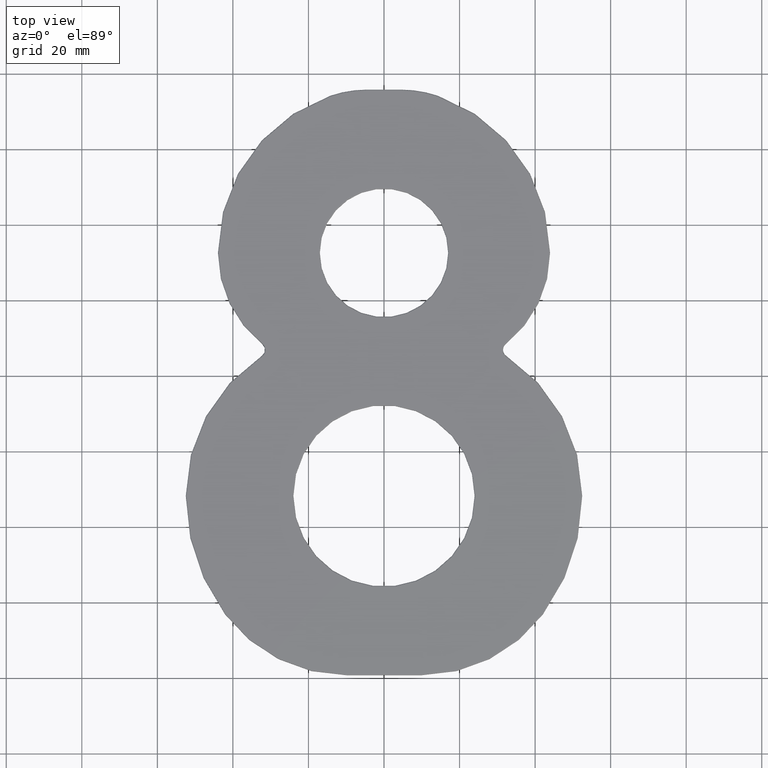
[diagram: clean part render]
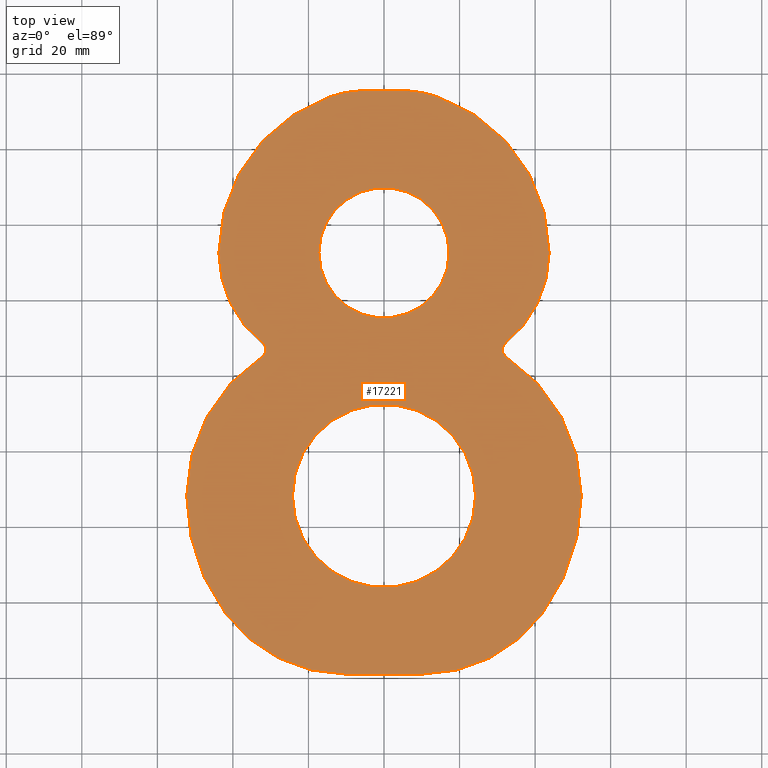
[diagram: same view with one face highlighted and labeled with its STEP entity id]
A machine part, top view. The second image highlights one B-rep face of the part: STEP entity #17221.
In plain terms, the highlighted planar face has unit normal (0, 0, 1).
Its self-contained STEP definition (entity closure, byte-faithful):
#182 = AXIS2_PLACEMENT_3D ( 'NONE', #4457, #7644, #20693 ) ;
#204 = DIRECTION ( 'NONE',  ( 1.000000000000000000, 0.000000000000000000, 0.000000000000000000 ) ) ;
#238 = CARTESIAN_POINT ( 'NONE',  ( -9.999999999999991118, 0.2499999999999839573, 2.000000000000000000 ) ) ;
#293 = CIRCLE ( 'NONE', #6199, 43.93447420343915866 ) ;
#358 = CARTESIAN_POINT ( 'NONE',  ( 32.27147091182821015, 84.25240921432731511, 2.000000000000000000 ) ) ;
#373 = VECTOR ( 'NONE', #13080, 1000.000000000000000 ) ;
#522 = CARTESIAN_POINT ( 'NONE',  ( -4.525184639115520824, 154.7499999999999716, 2.000000000000000000 ) ) ;
#526 = CARTESIAN_POINT ( 'NONE',  ( -17.25000000000000000, 111.7999999999999972, 2.000000000000000000 ) ) ;
#648 = CIRCLE ( 'NONE', #13644, 24.25000000000000000 ) ;
#1407 = CARTESIAN_POINT ( 'NONE',  ( -43.70411394600482424, 111.7999999999999972, 2.000000000000000000 ) ) ;
#1480 = DIRECTION ( 'NONE',  ( 1.000000000000000000, 0.000000000000000000, 0.000000000000000000 ) ) ;
#1860 = AXIS2_PLACEMENT_3D ( 'NONE', #22482, #19914, #23021 ) ;
#1879 = CARTESIAN_POINT ( 'NONE',  ( 41.88377982995511672, 16.26211711725438036, 2.000000000000000000 ) ) ;
#1933 = DIRECTION ( 'NONE',  ( -0.000000000000000000, -0.000000000000000000, -1.000000000000000000 ) ) ;
#1934 = CIRCLE ( 'NONE', #22835, 30.41686182021247120 ) ;
#2163 = AXIS2_PLACEMENT_3D ( 'NONE', #20025, #17333, #13805 ) ;
#2239 = ORIENTED_EDGE ( 'NONE', *, *, #5732, .T. ) ;
#2480 = DIRECTION ( 'NONE',  ( 1.000000000000000000, 0.000000000000000000, 0.000000000000000000 ) ) ;
#2918 = CARTESIAN_POINT ( 'NONE',  ( 52.21715421195277429, 47.44512821545821168, 2.000000000000000000 ) ) ;
#4292 = CARTESIAN_POINT ( 'NONE',  ( 8.282680008513624514, 47.44512821545820458, 2.000000000000000000 ) ) ;
#4457 = CARTESIAN_POINT ( 'NONE',  ( 33.50000000000000000, 86.13740690120012289, 2.000000000000000000 ) ) ;
#4598 = ORIENTED_EDGE ( 'NONE', *, *, #15261, .T. ) ;
#5226 = DIRECTION ( 'NONE',  ( 0.000000000000000000, 0.000000000000000000, 1.000000000000000000 ) ) ;
#5390 = DIRECTION ( 'NONE',  ( 0.000000000000000000, 0.000000000000000000, 1.000000000000000000 ) ) ;
#5412 = CIRCLE ( 'NONE', #10775, 52.21715421195277429 ) ;
#5732 = EDGE_CURVE ( 'NONE', #38239, #8104, #293, .T. ) ;
#5837 = VERTEX_POINT ( 'NONE', #29121 ) ;
#6199 = AXIS2_PLACEMENT_3D ( 'NONE', #25318, #15766, #34433 ) ;
#6213 = LINE ( 'NONE', #522, #373 ) ;
#6305 = CARTESIAN_POINT ( 'NONE',  ( 43.70411394600483845, 111.7999999999999972, 2.000000000000000000 ) ) ;
#6318 = CARTESIAN_POINT ( 'NONE',  ( 32.10780374413475613, 87.90497290708358946, 2.000000000000000000 ) ) ;
#6408 = VERTEX_POINT ( 'NONE', #526 ) ;
#6658 = DIRECTION ( 'NONE',  ( 1.000000000000000000, 0.000000000000000000, 0.000000000000000000 ) ) ;
#6874 = EDGE_CURVE ( 'NONE', #14497, #17317, #22132, .T. ) ;
#6965 = EDGE_LOOP ( 'NONE', ( #13730, #4598 ) ) ;
#7644 = DIRECTION ( 'NONE',  ( -0.000000000000000000, -0.000000000000000000, -1.000000000000000000 ) ) ;
#7996 = CARTESIAN_POINT ( 'NONE',  ( 10.00000000000000000, 0.2499999999999998890, 2.000000000000000000 ) ) ;
#8035 = ORIENTED_EDGE ( 'NONE', *, *, #31246, .T. ) ;
#8104 = VERTEX_POINT ( 'NONE', #27449 ) ;
#8802 = ORIENTED_EDGE ( 'NONE', *, *, #10666, .T. ) ;
#8824 = VERTEX_POINT ( 'NONE', #6305 ) ;
#8845 = CARTESIAN_POINT ( 'NONE',  ( -41.88377982995516646, 16.26211711725441944, 2.000000000000000000 ) ) ;
#8904 = EDGE_CURVE ( 'NONE', #8824, #30315, #33178, .T. ) ;
#9042 = EDGE_CURVE ( 'NONE', #5837, #37097, #648, .T. ) ;
#9080 = ORIENTED_EDGE ( 'NONE', *, *, #15685, .T. ) ;
#9342 = DIRECTION ( 'NONE',  ( 0.000000000000000000, 0.000000000000000000, 1.000000000000000000 ) ) ;
#9877 = EDGE_CURVE ( 'NONE', #17317, #21518, #12802, .T. ) ;
#10010 = EDGE_CURVE ( 'NONE', #21518, #36512, #5412, .T. ) ;
#10523 = EDGE_CURVE ( 'NONE', #28993, #30026, #14711, .T. ) ;
#10666 = EDGE_CURVE ( 'NONE', #36093, #33469, #30164, .T. ) ;
#10775 = AXIS2_PLACEMENT_3D ( 'NONE', #31926, #28933, #13125 ) ;
#10887 = CIRCLE ( 'NONE', #15355, 29.74999999999999289 ) ;
#10902 = CARTESIAN_POINT ( 'NONE',  ( -32.10780374413475613, 87.90497290708358946, 2.000000000000000000 ) ) ;
#11315 = AXIS2_PLACEMENT_3D ( 'NONE', #18543, #33691, #27838 ) ;
#11503 = CARTESIAN_POINT ( 'NONE',  ( -3.116700961018092268E-28, 47.44512821545820458, 2.000000000000000000 ) ) ;
#11683 = ORIENTED_EDGE ( 'NONE', *, *, #39736, .T. ) ;
#11979 = CARTESIAN_POINT ( 'NONE',  ( -14.17282285782383333, 153.1422383047425342, 2.000000000000000000 ) ) ;
#12010 = CARTESIAN_POINT ( 'NONE',  ( 0.000000000000000000, 111.7999999999999972, 2.000000000000000000 ) ) ;
#12802 = CIRCLE ( 'NONE', #11315, 39.75000000000000000 ) ;
#13080 = DIRECTION ( 'NONE',  ( -1.000000000000000000, 0.000000000000000000, 0.000000000000000000 ) ) ;
#13125 = DIRECTION ( 'NONE',  ( 1.000000000000000000, 0.000000000000000000, 0.000000000000000000 ) ) ;
#13644 = AXIS2_PLACEMENT_3D ( 'NONE', #11503, #30154, #27152 ) ;
#13730 = ORIENTED_EDGE ( 'NONE', *, *, #23840, .T. ) ;
#13805 = DIRECTION ( 'NONE',  ( 1.000000000000000000, 0.000000000000000000, 0.000000000000000000 ) ) ;
#13985 = VERTEX_POINT ( 'NONE', #358 ) ;
#14008 = EDGE_CURVE ( 'NONE', #13985, #39371, #25856, .T. ) ;
#14043 = AXIS2_PLACEMENT_3D ( 'NONE', #34484, #34614, #6658 ) ;
#14497 = VERTEX_POINT ( 'NONE', #238 ) ;
#14693 = ORIENTED_EDGE ( 'NONE', *, *, #25855, .T. ) ;
#14711 = CIRCLE ( 'NONE', #2163, 2.250000000000005329 ) ;
#14733 = CARTESIAN_POINT ( 'NONE',  ( -4.525184639115520824, 154.7499999999999716, 2.000000000000000000 ) ) ;
#14818 = DIRECTION ( 'NONE',  ( 1.000000000000000000, 0.000000000000000000, -0.000000000000000000 ) ) ;
#14881 = CARTESIAN_POINT ( 'NONE',  ( -33.50000000000000000, 86.13740690120012289, 2.000000000000000000 ) ) ;
#15133 = AXIS2_PLACEMENT_3D ( 'NONE', #34871, #5226, #20227 ) ;
#15232 = ORIENTED_EDGE ( 'NONE', *, *, #35768, .T. ) ;
#15261 = EDGE_CURVE ( 'NONE', #6408, #31631, #30767, .T. ) ;
#15355 = AXIS2_PLACEMENT_3D ( 'NONE', #40317, #9342, #27620 ) ;
#15612 = CARTESIAN_POINT ( 'NONE',  ( 13.28725212579236725, 111.7999999999999829, 2.000000000000000000 ) ) ;
#15685 = EDGE_CURVE ( 'NONE', #17562, #36093, #10887, .T. ) ;
#15740 = ORIENTED_EDGE ( 'NONE', *, *, #6874, .T. ) ;
#15766 = DIRECTION ( 'NONE',  ( 0.000000000000000000, 0.000000000000000000, 1.000000000000000000 ) ) ;
#15839 = AXIS2_PLACEMENT_3D ( 'NONE', #14881, #39282, #24288 ) ;
#16771 = CIRCLE ( 'NONE', #32561, 24.25000000000000000 ) ;
#16815 = CIRCLE ( 'NONE', #31580, 17.25000000000000000 ) ;
#17221 = ADVANCED_FACE ( 'NONE', ( #28242, #22935, #21955 ), #29409, .T. ) ;
#17317 = VERTEX_POINT ( 'NONE', #7996 ) ;
#17333 = DIRECTION ( 'NONE',  ( -0.000000000000000000, -0.000000000000000000, -1.000000000000000000 ) ) ;
#17562 = VERTEX_POINT ( 'NONE', #14733 ) ;
#17636 = CARTESIAN_POINT ( 'NONE',  ( -32.27147091182821015, 84.25240921432731511, 2.000000000000000000 ) ) ;
#18230 = CIRCLE ( 'NONE', #29408, 52.21715421195278850 ) ;
#18267 = DIRECTION ( 'NONE',  ( 1.000000000000000000, 0.000000000000000000, 0.000000000000000000 ) ) ;
#18543 = CARTESIAN_POINT ( 'NONE',  ( 10.00000000000000000, 40.00000000000000000, 2.000000000000000000 ) ) ;
#19005 = DIRECTION ( 'NONE',  ( 0.000000000000000000, 0.000000000000000000, 1.000000000000000000 ) ) ;
#19238 = AXIS2_PLACEMENT_3D ( 'NONE', #15612, #19005, #204 ) ;
#19371 = ORIENTED_EDGE ( 'NONE', *, *, #10523, .T. ) ;
#19376 = DIRECTION ( 'NONE',  ( 1.000000000000000000, 1.042680130009562612E-16, -0.000000000000000000 ) ) ;
#19680 = ORIENTED_EDGE ( 'NONE', *, *, #38876, .T. ) ;
#19754 = CARTESIAN_POINT ( 'NONE',  ( -24.25000000000000000, 47.44512821545820458, 2.000000000000000000 ) ) ;
#19785 = CIRCLE ( 'NONE', #15133, 29.74999999999998934 ) ;
#19788 = ORIENTED_EDGE ( 'NONE', *, *, #14008, .T. ) ;
#19914 = DIRECTION ( 'NONE',  ( 0.000000000000000000, 0.000000000000000000, 1.000000000000000000 ) ) ;
#20025 = CARTESIAN_POINT ( 'NONE',  ( -33.50000000000000000, 86.13740690120012289, 2.000000000000000000 ) ) ;
#20123 = DIRECTION ( 'NONE',  ( 0.000000000000000000, 0.000000000000000000, 1.000000000000000000 ) ) ;
#20227 = DIRECTION ( 'NONE',  ( 1.000000000000000000, 0.000000000000000000, 0.000000000000000000 ) ) ;
#20520 = CARTESIAN_POINT ( 'NONE',  ( -3.116700961018092268E-28, 47.44512821545820458, 2.000000000000000000 ) ) ;
#20693 = DIRECTION ( 'NONE',  ( 1.000000000000000000, 0.000000000000000000, 0.000000000000000000 ) ) ;
#20759 = DIRECTION ( 'NONE',  ( 0.000000000000000000, 0.000000000000000000, 1.000000000000000000 ) ) ;
#20927 = CARTESIAN_POINT ( 'NONE',  ( -13.28725212579236725, 111.7999999999999829, 2.000000000000000000 ) ) ;
#21471 = DIRECTION ( 'NONE',  ( 0.000000000000000000, 0.000000000000000000, 1.000000000000000000 ) ) ;
#21518 = VERTEX_POINT ( 'NONE', #1879 ) ;
#21955 = FACE_BOUND ( 'NONE', #30047, .T. ) ;
#22132 = LINE ( 'NONE', #25392, #27423 ) ;
#22482 = CARTESIAN_POINT ( 'NONE',  ( 0.000000000000000000, 111.7999999999999972, 2.000000000000000000 ) ) ;
#22835 = AXIS2_PLACEMENT_3D ( 'NONE', #20927, #5390, #39799 ) ;
#22839 = DIRECTION ( 'NONE',  ( 0.000000000000000000, 0.000000000000000000, 1.000000000000000000 ) ) ;
#22935 = FACE_OUTER_BOUND ( 'NONE', #36350, .T. ) ;
#23021 = DIRECTION ( 'NONE',  ( 1.000000000000000000, 0.000000000000000000, 0.000000000000000000 ) ) ;
#23589 = CARTESIAN_POINT ( 'NONE',  ( 13.28725212579236725, 111.7999999999999829, 2.000000000000000000 ) ) ;
#23809 = CIRCLE ( 'NONE', #35760, 43.93447420343915866 ) ;
#23840 = EDGE_CURVE ( 'NONE', #31631, #6408, #16815, .T. ) ;
#24270 = ORIENTED_EDGE ( 'NONE', *, *, #9042, .T. ) ;
#24288 = DIRECTION ( 'NONE',  ( 1.000000000000000000, 0.000000000000000000, 0.000000000000000000 ) ) ;
#25318 = CARTESIAN_POINT ( 'NONE',  ( -8.282680008513624514, 47.44512821545820458, 2.000000000000000000 ) ) ;
#25392 = CARTESIAN_POINT ( 'NONE',  ( 10.00000000000000000, 0.2499999999999998890, 2.000000000000000000 ) ) ;
#25526 = AXIS2_PLACEMENT_3D ( 'NONE', #30438, #36155, #2480 ) ;
#25855 = EDGE_CURVE ( 'NONE', #30026, #38239, #28552, .T. ) ;
#25856 = CIRCLE ( 'NONE', #182, 2.250000000000001776 ) ;
#26282 = DIRECTION ( 'NONE',  ( 1.000000000000000000, 0.000000000000000000, 0.000000000000000000 ) ) ;
#26339 = EDGE_CURVE ( 'NONE', #39371, #8824, #38307, .T. ) ;
#26555 = ORIENTED_EDGE ( 'NONE', *, *, #10010, .T. ) ;
#26566 = DIRECTION ( 'NONE',  ( -0.000000000000000000, -0.000000000000000000, -1.000000000000000000 ) ) ;
#26743 = DIRECTION ( 'NONE',  ( 1.000000000000000000, 0.000000000000000000, 0.000000000000000000 ) ) ;
#26908 = CIRCLE ( 'NONE', #25526, 39.75000000000002132 ) ;
#27152 = DIRECTION ( 'NONE',  ( 1.000000000000000000, 0.000000000000000000, 0.000000000000000000 ) ) ;
#27423 = VECTOR ( 'NONE', #19376, 1000.000000000000000 ) ;
#27449 = CARTESIAN_POINT ( 'NONE',  ( -52.21715421195277429, 47.44512821545821168, 2.000000000000000000 ) ) ;
#27620 = DIRECTION ( 'NONE',  ( 1.000000000000000000, 0.000000000000000000, 0.000000000000000000 ) ) ;
#27838 = DIRECTION ( 'NONE',  ( 1.000000000000000000, 0.000000000000000000, 0.000000000000000000 ) ) ;
#28242 = FACE_BOUND ( 'NONE', #6965, .T. ) ;
#28552 = CIRCLE ( 'NONE', #15839, 2.250000000000005329 ) ;
#28927 = ORIENTED_EDGE ( 'NONE', *, *, #35956, .T. ) ;
#28933 = DIRECTION ( 'NONE',  ( 0.000000000000000000, 0.000000000000000000, 1.000000000000000000 ) ) ;
#28993 = VERTEX_POINT ( 'NONE', #10902 ) ;
#29121 = CARTESIAN_POINT ( 'NONE',  ( 24.25000000000000000, 47.44512821545820458, 2.000000000000000000 ) ) ;
#29408 = AXIS2_PLACEMENT_3D ( 'NONE', #38689, #20123, #1480 ) ;
#29409 = PLANE ( 'NONE',  #39539 ) ;
#30026 = VERTEX_POINT ( 'NONE', #38718 ) ;
#30047 = EDGE_LOOP ( 'NONE', ( #24270, #33898 ) ) ;
#30154 = DIRECTION ( 'NONE',  ( -0.000000000000000000, -0.000000000000000000, -1.000000000000000000 ) ) ;
#30164 = CIRCLE ( 'NONE', #33373, 43.70411394600482424 ) ;
#30315 = VERTEX_POINT ( 'NONE', #31911 ) ;
#30390 = EDGE_CURVE ( 'NONE', #8104, #38668, #18230, .T. ) ;
#30438 = CARTESIAN_POINT ( 'NONE',  ( -9.999999999999998224, 40.00000000000000711, 2.000000000000000000 ) ) ;
#30461 = EDGE_CURVE ( 'NONE', #37097, #5837, #16771, .T. ) ;
#30767 = CIRCLE ( 'NONE', #14043, 17.25000000000000000 ) ;
#31246 = EDGE_CURVE ( 'NONE', #38668, #14497, #26908, .T. ) ;
#31580 = AXIS2_PLACEMENT_3D ( 'NONE', #35997, #1933, #26743 ) ;
#31631 = VERTEX_POINT ( 'NONE', #38704 ) ;
#31911 = CARTESIAN_POINT ( 'NONE',  ( 14.17282285782384221, 153.1422383047425342, 2.000000000000000000 ) ) ;
#31926 = CARTESIAN_POINT ( 'NONE',  ( -3.116700961018092268E-28, 47.44512821545820458, 2.000000000000000000 ) ) ;
#32219 = CARTESIAN_POINT ( 'NONE',  ( 4.525184639115523488, 154.7499999999999716, 2.000000000000000000 ) ) ;
#32442 = VERTEX_POINT ( 'NONE', #32219 ) ;
#32561 = AXIS2_PLACEMENT_3D ( 'NONE', #20520, #26566, #26282 ) ;
#33113 = ORIENTED_EDGE ( 'NONE', *, *, #9877, .T. ) ;
#33178 = CIRCLE ( 'NONE', #1860, 43.70411394600482424 ) ;
#33373 = AXIS2_PLACEMENT_3D ( 'NONE', #12010, #21471, #18267 ) ;
#33469 = VERTEX_POINT ( 'NONE', #1407 ) ;
#33691 = DIRECTION ( 'NONE',  ( 0.000000000000000000, 0.000000000000000000, 1.000000000000000000 ) ) ;
#33898 = ORIENTED_EDGE ( 'NONE', *, *, #30461, .T. ) ;
#33968 = ORIENTED_EDGE ( 'NONE', *, *, #26339, .T. ) ;
#34433 = DIRECTION ( 'NONE',  ( 1.000000000000000000, 0.000000000000000000, 0.000000000000000000 ) ) ;
#34484 = CARTESIAN_POINT ( 'NONE',  ( 0.000000000000000000, 111.7999999999999972, 2.000000000000000000 ) ) ;
#34614 = DIRECTION ( 'NONE',  ( -0.000000000000000000, -0.000000000000000000, -1.000000000000000000 ) ) ;
#34871 = CARTESIAN_POINT ( 'NONE',  ( 4.525184639115521712, 124.9999999999999716, 2.000000000000000000 ) ) ;
#35288 = DIRECTION ( 'NONE',  ( 1.000000000000000000, 0.000000000000000000, 0.000000000000000000 ) ) ;
#35760 = AXIS2_PLACEMENT_3D ( 'NONE', #4292, #22839, #35288 ) ;
#35768 = EDGE_CURVE ( 'NONE', #36512, #13985, #23809, .T. ) ;
#35956 = EDGE_CURVE ( 'NONE', #33469, #28993, #1934, .T. ) ;
#35997 = CARTESIAN_POINT ( 'NONE',  ( 0.000000000000000000, 111.7999999999999972, 2.000000000000000000 ) ) ;
#36093 = VERTEX_POINT ( 'NONE', #11979 ) ;
#36155 = DIRECTION ( 'NONE',  ( 0.000000000000000000, 0.000000000000000000, 1.000000000000000000 ) ) ;
#36350 = EDGE_LOOP ( 'NONE', ( #15232, #19788, #33968, #39608, #11683, #19680, #9080, #8802, #28927, #19371, #14693, #2239, #36816, #8035, #15740, #33113, #26555 ) ) ;
#36512 = VERTEX_POINT ( 'NONE', #2918 ) ;
#36816 = ORIENTED_EDGE ( 'NONE', *, *, #30390, .T. ) ;
#37097 = VERTEX_POINT ( 'NONE', #19754 ) ;
#38239 = VERTEX_POINT ( 'NONE', #17636 ) ;
#38307 = CIRCLE ( 'NONE', #19238, 30.41686182021247120 ) ;
#38668 = VERTEX_POINT ( 'NONE', #8845 ) ;
#38689 = CARTESIAN_POINT ( 'NONE',  ( -3.116700961018092268E-28, 47.44512821545820458, 2.000000000000000000 ) ) ;
#38704 = CARTESIAN_POINT ( 'NONE',  ( 17.25000000000000000, 111.7999999999999972, 2.000000000000000000 ) ) ;
#38718 = CARTESIAN_POINT ( 'NONE',  ( -31.24999999999999645, 86.13740690120012289, 2.000000000000000000 ) ) ;
#38876 = EDGE_CURVE ( 'NONE', #32442, #17562, #6213, .T. ) ;
#39282 = DIRECTION ( 'NONE',  ( -0.000000000000000000, -0.000000000000000000, -1.000000000000000000 ) ) ;
#39371 = VERTEX_POINT ( 'NONE', #6318 ) ;
#39539 = AXIS2_PLACEMENT_3D ( 'NONE', #23589, #20759, #14818 ) ;
#39608 = ORIENTED_EDGE ( 'NONE', *, *, #8904, .T. ) ;
#39736 = EDGE_CURVE ( 'NONE', #30315, #32442, #19785, .T. ) ;
#39799 = DIRECTION ( 'NONE',  ( 1.000000000000000000, 0.000000000000000000, 0.000000000000000000 ) ) ;
#40317 = CARTESIAN_POINT ( 'NONE',  ( -4.525184639115521712, 124.9999999999999716, 2.000000000000000000 ) ) ;